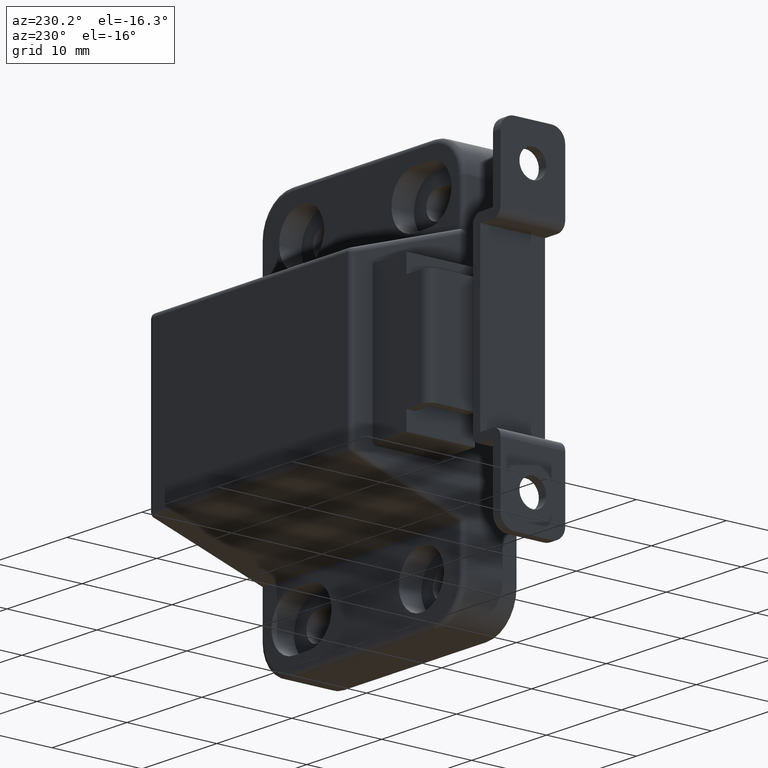
[diagram: clean part render]
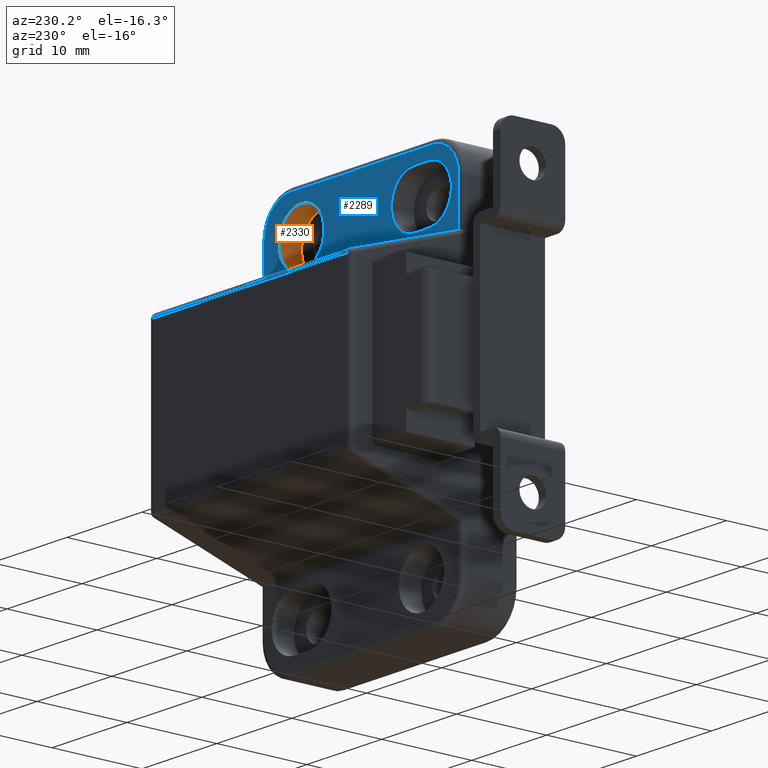
[diagram: same view with the hole feature highlighted: cylindrical wall and planar end face, labeled with their STEP entity ids]
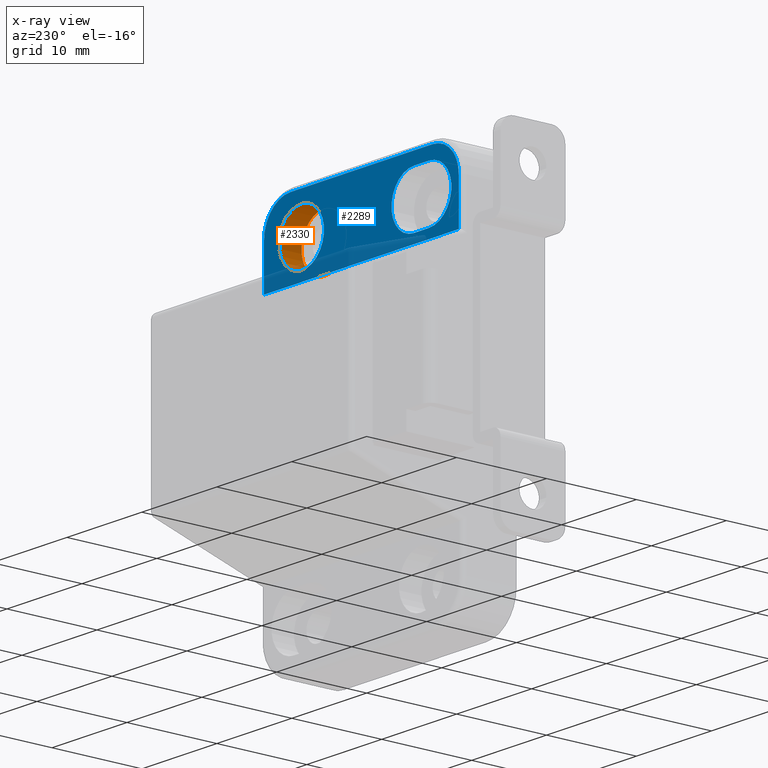
[diagram: x-ray of the same camera — body ghosted, the hole faces saturated]
A machine part, auxiliary view. The highlighted faces form one hole feature of diameter 6 mm: the cylindrical wall (entity #2330, orange) and its adjacent planar end face (entity #2289, blue) — they share a circular edge in the B-rep.
The next image is the same camera in x-ray (body ghosted, the hole faces saturated) — the bore reads through the body.
Wall:
#67=FACE_BOUND('',#890,.T.);
#658=CYLINDRICAL_SURFACE('',#2541,3.);
#738=FACE_OUTER_BOUND('',#889,.T.);
#889=EDGE_LOOP('',(#1880));
#890=EDGE_LOOP('',(#1881));
#1008=CIRCLE('',#2466,3.);
#1043=CIRCLE('',#2542,3.);
#1110=VERTEX_POINT('',#3499);
#1176=VERTEX_POINT('',#3701);
#1349=EDGE_CURVE('',#1110,#1110,#1008,.T.);
#1444=EDGE_CURVE('',#1176,#1176,#1043,.T.);
#1880=ORIENTED_EDGE('',*,*,#1444,.T.);
#1881=ORIENTED_EDGE('',*,*,#1349,.F.);
#2330=ADVANCED_FACE('',(#738,#67),#658,.F.);
#2466=AXIS2_PLACEMENT_3D('',#3500,#2798,#2799);
#2541=AXIS2_PLACEMENT_3D('',#3700,#3008,#3009);
#2542=AXIS2_PLACEMENT_3D('',#3702,#3010,#3011);
#2798=DIRECTION('center_axis',(0.,-1.,0.));
#2799=DIRECTION('ref_axis',(1.,0.,0.));
#3008=DIRECTION('center_axis',(0.,-1.,0.));
#3009=DIRECTION('ref_axis',(1.,0.,0.));
#3010=DIRECTION('center_axis',(0.,-1.,0.));
#3011=DIRECTION('ref_axis',(1.,0.,0.));
#3499=CARTESIAN_POINT('',(14.,6.,-21.5));
#3500=CARTESIAN_POINT('Origin',(17.,6.,-21.5));
#3700=CARTESIAN_POINT('Origin',(17.,6.,-21.5));
#3701=CARTESIAN_POINT('',(14.,3.5,-21.5));
#3702=CARTESIAN_POINT('Origin',(17.,3.5,-21.5));
End face:
#54=FACE_BOUND('',#836,.T.);
#55=FACE_BOUND('',#837,.T.);
#83=PLANE('',#2465);
#195=LINE('',#3475,#422);
#196=LINE('',#3486,#423);
#198=LINE('',#3495,#425);
#200=LINE('',#3498,#427);
#201=LINE('',#3505,#428);
#202=LINE('',#3508,#429);
#422=VECTOR('',#2768,4.85);
#423=VECTOR('',#2781,19.);
#425=VECTOR('',#2793,4.85);
#427=VECTOR('',#2797,26.);
#428=VECTOR('',#2802,2.);
#429=VECTOR('',#2805,2.);
#697=FACE_OUTER_BOUND('',#835,.T.);
#835=EDGE_LOOP('',(#1697,#1698,#1699,#1700,#1701,#1702));
#836=EDGE_LOOP('',(#1703));
#837=EDGE_LOOP('',(#1704,#1705,#1706,#1707));
#1002=CIRCLE('',#2456,3.5);
#1006=CIRCLE('',#2462,3.5);
#1008=CIRCLE('',#2466,3.);
#1009=CIRCLE('',#2467,3.);
#1010=CIRCLE('',#2468,3.);
#1077=VERTEX_POINT('',#3387);
#1083=VERTEX_POINT('',#3402);
#1103=VERTEX_POINT('',#3473);
#1105=VERTEX_POINT('',#3478);
#1107=VERTEX_POINT('',#3484);
#1109=VERTEX_POINT('',#3490);
#1110=VERTEX_POINT('',#3499);
#1111=VERTEX_POINT('',#3501);
#1112=VERTEX_POINT('',#3502);
#1113=VERTEX_POINT('',#3504);
#1114=VERTEX_POINT('',#3506);
#1336=EDGE_CURVE('',#1103,#1077,#195,.T.);
#1338=EDGE_CURVE('',#1105,#1103,#1002,.T.);
#1341=EDGE_CURVE('',#1107,#1105,#196,.T.);
#1344=EDGE_CURVE('',#1109,#1107,#1006,.T.);
#1346=EDGE_CURVE('',#1083,#1109,#198,.T.);
#1348=EDGE_CURVE('',#1083,#1077,#200,.T.);
#1349=EDGE_CURVE('',#1110,#1110,#1008,.T.);
#1350=EDGE_CURVE('',#1111,#1112,#1009,.T.);
#1351=EDGE_CURVE('',#1112,#1113,#201,.T.);
#1352=EDGE_CURVE('',#1113,#1114,#1010,.T.);
#1353=EDGE_CURVE('',#1114,#1111,#202,.T.);
#1697=ORIENTED_EDGE('',*,*,#1336,.F.);
#1698=ORIENTED_EDGE('',*,*,#1338,.F.);
#1699=ORIENTED_EDGE('',*,*,#1341,.F.);
#1700=ORIENTED_EDGE('',*,*,#1344,.F.);
#1701=ORIENTED_EDGE('',*,*,#1346,.F.);
#1702=ORIENTED_EDGE('',*,*,#1348,.T.);
#1703=ORIENTED_EDGE('',*,*,#1349,.T.);
#1704=ORIENTED_EDGE('',*,*,#1350,.T.);
#1705=ORIENTED_EDGE('',*,*,#1351,.T.);
#1706=ORIENTED_EDGE('',*,*,#1352,.T.);
#1707=ORIENTED_EDGE('',*,*,#1353,.T.);
#2289=ADVANCED_FACE('',(#697,#54,#55),#83,.F.);
#2456=AXIS2_PLACEMENT_3D('',#3480,#2773,#2774);
#2462=AXIS2_PLACEMENT_3D('',#3492,#2787,#2788);
#2465=AXIS2_PLACEMENT_3D('',#3497,#2795,#2796);
#2466=AXIS2_PLACEMENT_3D('',#3500,#2798,#2799);
#2467=AXIS2_PLACEMENT_3D('',#3503,#2800,#2801);
#2468=AXIS2_PLACEMENT_3D('',#3507,#2803,#2804);
#2768=DIRECTION('',(-1.,0.,0.));
#2773=DIRECTION('center_axis',(0.,-1.,0.));
#2774=DIRECTION('ref_axis',(0.707106781186547,0.,0.707106781186548));
#2781=DIRECTION('',(2.3373116307898E-16,0.,1.));
#2787=DIRECTION('center_axis',(0.,-1.,0.));
#2788=DIRECTION('ref_axis',(0.707106781186548,0.,-0.707106781186547));
#2793=DIRECTION('',(1.,0.,2.48789473305357E-16));
#2795=DIRECTION('center_axis',(0.,-1.,0.));
#2796=DIRECTION('ref_axis',(0.,0.,-1.));
#2797=DIRECTION('',(0.,0.,1.));
#2798=DIRECTION('center_axis',(0.,-1.,0.));
#2799=DIRECTION('ref_axis',(1.,0.,0.));
#2800=DIRECTION('center_axis',(0.,-1.,0.));
#2801=DIRECTION('ref_axis',(1.,0.,0.));
#2802=DIRECTION('',(0.,0.,1.));
#2803=DIRECTION('center_axis',(0.,-1.,0.));
#2804=DIRECTION('ref_axis',(-1.,0.,0.));
#2805=DIRECTION('',(0.,0.,-1.));
#3387=CARTESIAN_POINT('',(13.,6.,-0.5));
#3402=CARTESIAN_POINT('',(13.,6.,-26.5));
#3473=CARTESIAN_POINT('',(17.85,6.,-0.5));
#3475=CARTESIAN_POINT('',(-19.7144494053194,6.,-0.5));
#3478=CARTESIAN_POINT('',(21.35,6.,-3.99999999999999));
#3480=CARTESIAN_POINT('Origin',(17.85,6.,-3.99999999999999));
#3484=CARTESIAN_POINT('',(21.35,6.,-23.));
#3486=CARTESIAN_POINT('',(21.35,6.,-8.75));
#3490=CARTESIAN_POINT('',(17.85,6.,-26.5));
#3492=CARTESIAN_POINT('Origin',(17.85,6.,-23.));
#3495=CARTESIAN_POINT('',(8.92500000000001,6.,-26.5));
#3497=CARTESIAN_POINT('Origin',(2.22044604925031E-15,6.,-13.5));
#3498=CARTESIAN_POINT('',(13.,6.,-20.));
#3499=CARTESIAN_POINT('',(14.,6.,-21.5));
#3500=CARTESIAN_POINT('Origin',(17.,6.,-21.5));
#3501=CARTESIAN_POINT('',(14.,6.,-6.5));
#3502=CARTESIAN_POINT('',(20.,6.,-6.5));
#3503=CARTESIAN_POINT('Origin',(17.,6.,-6.5));
#3504=CARTESIAN_POINT('',(20.,6.,-4.5));
#3505=CARTESIAN_POINT('',(20.,6.,-10.));
#3506=CARTESIAN_POINT('',(14.,6.,-4.5));
#3507=CARTESIAN_POINT('Origin',(17.,6.,-4.5));
#3508=CARTESIAN_POINT('',(14.,6.,-9.));